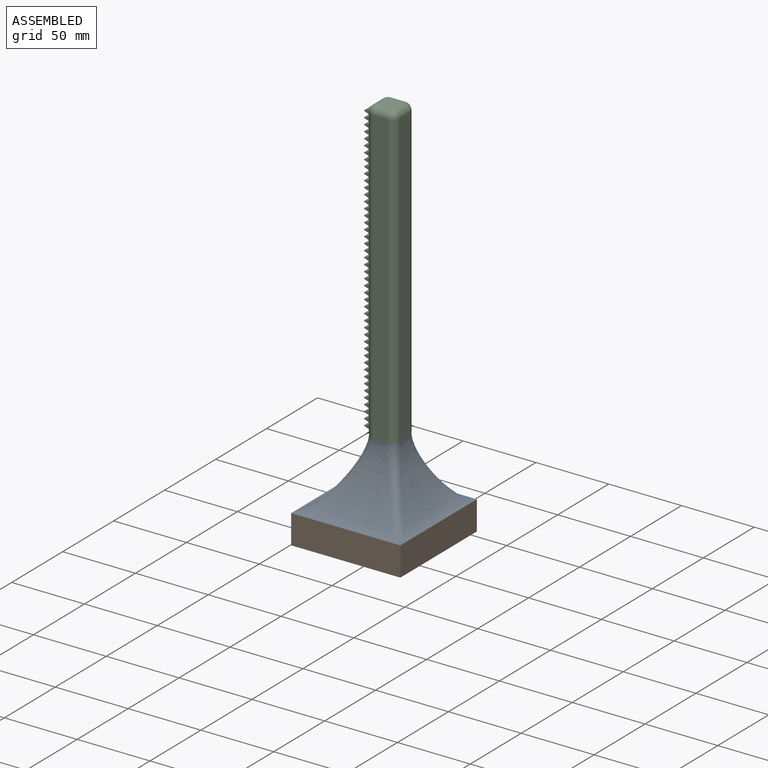
[diagram: assembled view]
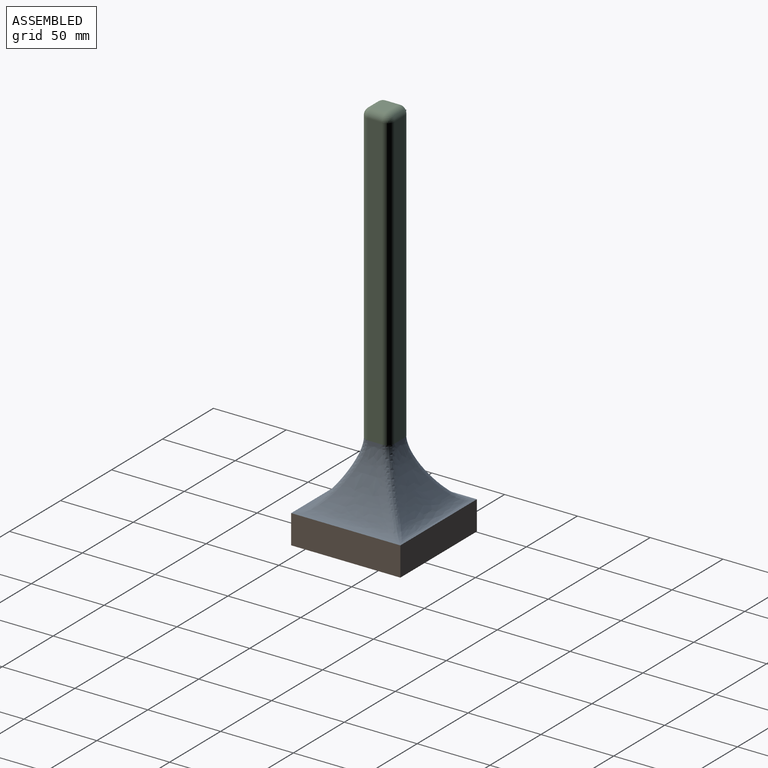
[diagram: assembled view, second angle]
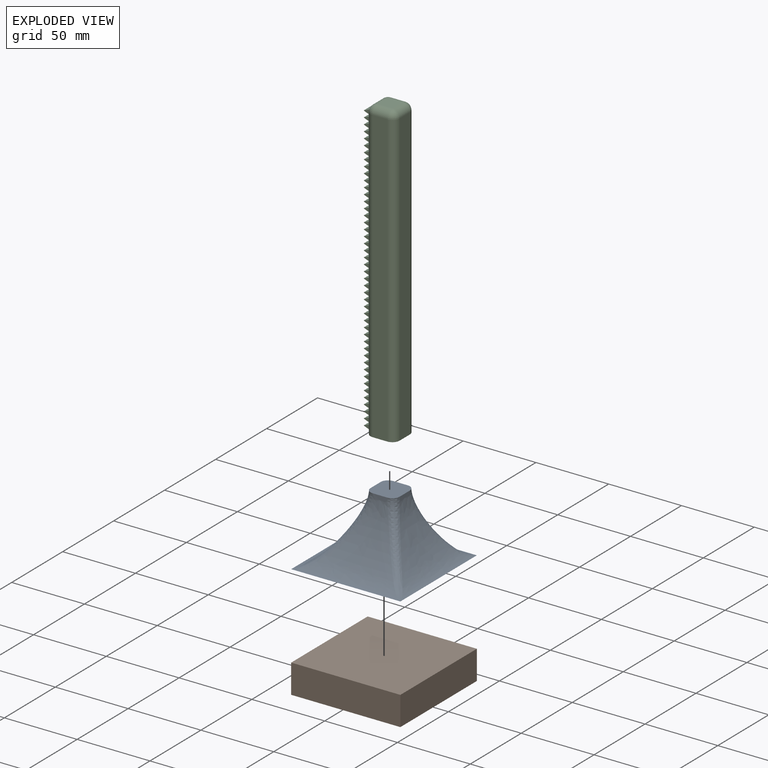
[diagram: exploded view]
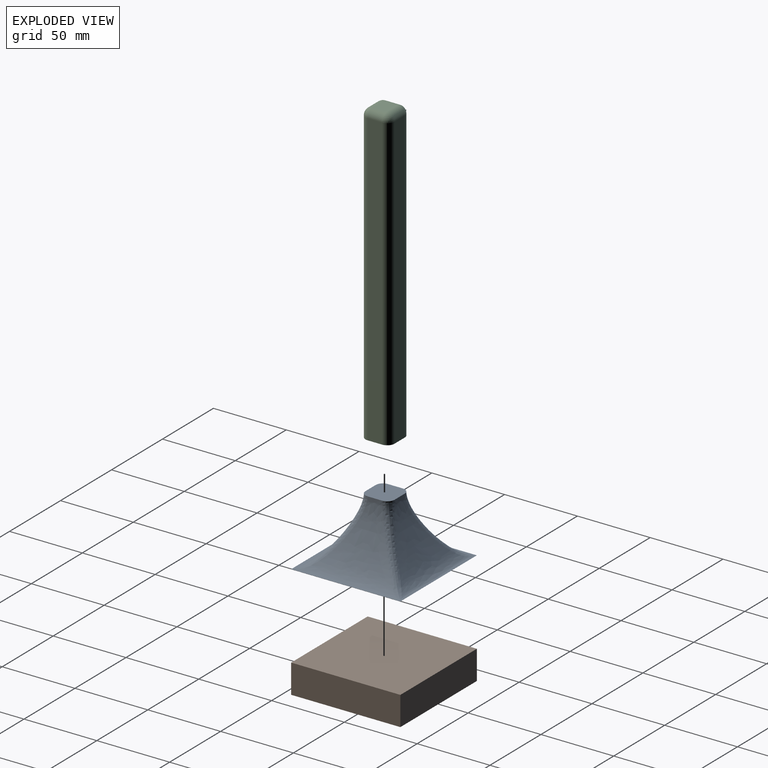
[diagram: exploded view, second angle]
ASSEMBLY  parts=3 mates=2
PART A: 10 faces, bbox 75x75x45.7 mm
  f0: plane 75x75mm, normal (0,0,-1), area 5625mm2, adj f2,f3,f4,f5
  f1: plane 20x20mm, normal (0,0,1), area 378.5mm2, adj f2,f3,f4,f5,f6,f7,f8,f9
  f2: bspline ~75x45mm, area 1706.3mm2, adj f0,f1,f8,f9
  f3: bspline ~75x45mm, area 1863.4mm2, adj f0,f1,f7,f8
  f4: bspline ~75x45mm, area 1863.3mm2, adj f0,f1,f6,f7
  f5: bspline ~75x45mm, area 1706.4mm2, adj f0,f1,f6,f9
  f6: bspline ~45.33x35mm, area 382mm2, adj f1,f4,f5
  f7: bspline ~45.66x35mm, area 383.9mm2, adj f1,f3,f4
  f8: bspline ~45.33x35mm, area 382mm2, adj f1,f2,f3
  f9: bspline ~45.44x30mm, area 376.5mm2, adj f1,f2,f5
PART B: 6 faces, bbox 75x75x20 mm
  f0: plane 75x20mm, normal (1,0,0), area 1500mm2, adj f1,f3,f4,f5
  f1: plane 75x20mm, normal (0,1,0), area 1500mm2, adj f0,f2,f4,f5
  f2: plane 75x20mm, normal (-1,0,0), area 1500mm2, adj f1,f3,f4,f5
  f3: plane 75x20mm, normal (0,-1,0), area 1500mm2, adj f0,f2,f4,f5
  f4: plane 75x75mm, normal (0,0,-1), area 5625mm2, adj f0,f1,f2,f3
  f5: plane 75x75mm, normal (0,0,1), area 5625mm2, adj f0,f1,f2,f3
PART C: 273 faces, bbox 25.3x20x205 mm
  f0: plane 200x10mm, normal (1,0,0), area 2000mm2, adj f2,f260,f262,f269
  f1: plane 200x10mm, normal (-1,0,0), area 441mm2, adj f2,f5,f6,f7,f8,f9,f10,f11
  f2: plane 20x20mm, normal (0,0,-1), area 378.5mm2, adj f0,f1,f3,f4,f260,f261,f262,f263
  f3: plane 200x10mm, normal (0,-1,0), area 2000mm2, adj f2,f262,f263,f272
  f4: plane 200x10mm, normal (0,1,0), area 2000mm2, adj f2,f260,f261,f265
  f5: plane 99.94x5.34mm, normal (0,-1,0), area 283.4mm2, adj f1,f29,f30,f31,f32,f33,f34,f35
  f6: plane 5.34x4.35mm, normal (0,-1,0), area 12.3mm2, adj f1,f82,f83,f84,f85,f86
  f7: plane 5.34x4.35mm, normal (0,-1,0), area 12.3mm2, adj f1,f87,f88,f89,f90,f91
  f8: plane 5.34x4.35mm, normal (0,-1,0), area 12.3mm2, adj f1,f92,f93,f94,f95,f96
  f9: plane 5.34x4.35mm, normal (0,-1,0), area 12.3mm2, adj f1,f97,f98,f99,f100,f101
  f10: plane 5.34x4.35mm, normal (0,-1,0), area 12.3mm2, adj f1,f102,f103,f104,f105,f106
  f11: plane 5.34x4.35mm, normal (0,-1,0), area 12.3mm2, adj f1,f107,f108,f109,f110,f111
  f12: plane 5.34x4.35mm, normal (0,-1,0), area 12.3mm2, adj f1,f112,f113,f114,f115,f116
  f13: plane 5.34x4.35mm, normal (0,-1,0), area 12.3mm2, adj f1,f117,f118,f119,f120,f121
  f14: plane 5.34x4.35mm, normal (0,-1,0), area 12.3mm2, adj f1,f122,f123,f124,f125,f126
  f15: plane 5.34x4.35mm, normal (0,-1,0), area 12.3mm2, adj f1,f127,f128,f129,f130,f131
  f16: plane 5.34x4.35mm, normal (0,-1,0), area 12.3mm2, adj f1,f132,f133,f134,f135,f136
  f17: plane 5.34x4.35mm, normal (0,-1,0), area 12.3mm2, adj f1,f137,f138,f139,f140,f141
  f18: plane 5.34x4.35mm, normal (0,-1,0), area 12.3mm2, adj f1,f142,f143,f144,f145,f146
  f19: plane 5.34x4.35mm, normal (0,-1,0), area 12.3mm2, adj f1,f147,f148,f149,f150,f151
  f20: plane 5.34x4.35mm, normal (0,-1,0), area 12.3mm2, adj f1,f152,f153,f154,f155,f156
  f21: plane 5.34x4.35mm, normal (0,-1,0), area 12.3mm2, adj f1,f157,f158,f159,f160,f161
  f22: plane 5.34x4.35mm, normal (0,-1,0), area 12.3mm2, adj f1,f162,f163,f164,f165,f166
  f23: plane 5.34x4.35mm, normal (0,-1,0), area 12.3mm2, adj f1,f167,f168,f169,f170,f171
  f24: plane 5.34x4.35mm, normal (0,-1,0), area 12.3mm2, adj f1,f172,f173,f174,f175,f176
  f25: plane 5.34x4.35mm, normal (0,-1,0), area 12.3mm2, adj f1,f177,f178,f179,f180,f181
  f26: plane 5.34x4.35mm, normal (0,-1,0), area 12.3mm2, adj f1,f182,f183,f184,f185,f186
  f27: plane 5.34x4.35mm, normal (0,-1,0), area 12.3mm2, adj f1,f187,f188,f189,f190,f191
  f28: plane 5.34x4.35mm, normal (0,-1,0), area 12.3mm2, adj f1,f192,f193,f194,f195,f196
  f29: plane 7.8x0.49mm, normal (-0.36,0,-0.93), area 4.1mm2, adj f5,f30,f235,f236
  f30: plane 7.8x5.21mm, normal (-0.36,0,0.93), area 43.5mm2, adj f5,f29,f31,f236
  f31: cylinder r=0.2mm len=7.8mm, axis (0,1,0), area 3.8mm2, adj f5,f30,f32,f236
  f32: plane 7.8x4.72mm, normal (-0.36,0,-0.93), area 39.4mm2, adj f5,f31,f33,f236
  f33: plane 7.8x0.49mm, normal (-0.36,0,-0.93), area 4.1mm2, adj f5,f32,f34,f236
  f34: plane 7.8x5.21mm, normal (-0.36,0,0.93), area 43.5mm2, adj f5,f33,f35,f236
  f35: cylinder r=0.2mm len=7.8mm, axis (0,1,0), area 3.8mm2, adj f5,f34,f36,f236
  f36: plane 7.8x4.72mm, normal (-0.36,0,-0.93), area 39.4mm2, adj f5,f35,f37,f236
  f37: plane 7.8x0.49mm, normal (-0.36,0,-0.93), area 4.1mm2, adj f5,f36,f38,f236
  f38: plane 7.8x5.21mm, normal (-0.36,0,0.93), area 43.5mm2, adj f5,f37,f39,f236
  f39: cylinder r=0.2mm len=7.8mm, axis (0,1,0), area 3.8mm2, adj f5,f38,f40,f236
  f40: plane 7.8x4.72mm, normal (-0.36,0,-0.93), area 39.4mm2, adj f5,f39,f41,f236
  f41: plane 7.8x0.49mm, normal (-0.36,0,-0.93), area 4.1mm2, adj f5,f40,f42,f236
  f42: plane 7.8x5.21mm, normal (-0.36,0,0.93), area 43.5mm2, adj f5,f41,f43,f236
  f43: cylinder r=0.2mm len=7.8mm, axis (0,1,0), area 3.8mm2, adj f5,f42,f44,f236
  f44: plane 7.8x4.72mm, normal (-0.36,0,-0.93), area 39.4mm2, adj f5,f43,f45,f236
  f45: plane 7.8x0.49mm, normal (-0.36,0,-0.93), area 4.1mm2, adj f5,f44,f46,f236
  f46: plane 7.8x5.21mm, normal (-0.36,0,0.93), area 43.5mm2, adj f5,f45,f47,f236
  f47: cylinder r=0.2mm len=7.8mm, axis (0,1,0), area 3.8mm2, adj f5,f46,f48,f236
  f48: plane 7.8x4.72mm, normal (-0.36,0,-0.93), area 39.4mm2, adj f5,f47,f49,f236
  f49: plane 7.8x0.49mm, normal (-0.36,0,-0.93), area 4.1mm2, adj f5,f48,f50,f236
  f50: plane 7.8x5.21mm, normal (-0.36,0,0.93), area 43.5mm2, adj f5,f49,f51,f236
  f51: cylinder r=0.2mm len=7.8mm, axis (0,1,0), area 3.8mm2, adj f5,f50,f52,f236
  f52: plane 7.8x4.72mm, normal (-0.36,0,-0.93), area 39.4mm2, adj f5,f51,f53,f236
  f53: plane 7.8x0.49mm, normal (-0.36,0,-0.93), area 4.1mm2, adj f5,f52,f54,f236
  f54: plane 7.8x5.21mm, normal (-0.36,0,0.93), area 43.5mm2, adj f5,f53,f55,f236
  f55: cylinder r=0.2mm len=7.8mm, axis (0,1,0), area 3.8mm2, adj f5,f54,f56,f236
  f56: plane 7.8x4.72mm, normal (-0.36,0,-0.93), area 39.4mm2, adj f5,f55,f57,f236
  f57: plane 7.8x0.49mm, normal (-0.36,0,-0.93), area 4.1mm2, adj f5,f56,f58,f236
  f58: plane 7.8x5.21mm, normal (-0.36,0,0.93), area 43.5mm2, adj f5,f57,f59,f236
  f59: cylinder r=0.2mm len=7.8mm, axis (0,1,0), area 3.8mm2, adj f5,f58,f60,f236
  f60: plane 7.8x4.72mm, normal (-0.36,0,-0.93), area 39.4mm2, adj f5,f59,f61,f236
  f61: plane 7.8x0.49mm, normal (-0.36,0,-0.93), area 4.1mm2, adj f5,f60,f62,f236
  f62: plane 7.8x5.21mm, normal (-0.36,0,0.93), area 43.5mm2, adj f5,f61,f63,f236
  f63: cylinder r=0.2mm len=7.8mm, axis (0,1,0), area 3.8mm2, adj f5,f62,f64,f236
  f64: plane 7.8x4.72mm, normal (-0.36,0,-0.93), area 39.4mm2, adj f5,f63,f65,f236
  f65: plane 7.8x0.49mm, normal (-0.36,0,-0.93), area 4.1mm2, adj f5,f64,f66,f236
  f66: plane 7.8x5.21mm, normal (-0.36,0,0.93), area 43.5mm2, adj f5,f65,f67,f236
  f67: cylinder r=0.2mm len=7.8mm, axis (0,1,0), area 3.8mm2, adj f5,f66,f68,f236
  f68: plane 7.8x4.72mm, normal (-0.36,0,-0.93), area 39.4mm2, adj f5,f67,f69,f236
  f69: plane 7.8x0.49mm, normal (-0.36,0,-0.93), area 4.1mm2, adj f5,f68,f70,f236
  f70: plane 7.8x5.21mm, normal (-0.36,0,0.93), area 43.5mm2, adj f5,f69,f71,f236
  f71: cylinder r=0.2mm len=7.8mm, axis (0,1,0), area 3.8mm2, adj f5,f70,f72,f236
  f72: plane 7.8x4.72mm, normal (-0.36,0,-0.93), area 39.4mm2, adj f5,f71,f73,f236
  f73: plane 7.8x0.49mm, normal (-0.36,0,-0.93), area 4.1mm2, adj f5,f72,f74,f236
  f74: plane 7.8x5.21mm, normal (-0.36,0,0.93), area 43.5mm2, adj f5,f73,f75,f236
  f75: cylinder r=0.2mm len=7.8mm, axis (0,1,0), area 3.8mm2, adj f5,f74,f76,f236
  f76: plane 7.8x4.72mm, normal (-0.36,0,-0.93), area 39.4mm2, adj f5,f75,f77,f236
  f77: plane 7.8x0.49mm, normal (-0.36,0,-0.93), area 4.1mm2, adj f5,f76,f78,f236
  f78: plane 7.8x5.21mm, normal (-0.36,0,0.93), area 43.5mm2, adj f5,f77,f79,f236
  f79: cylinder r=0.2mm len=7.8mm, axis (0,1,0), area 3.8mm2, adj f5,f78,f80,f236
  f80: plane 7.8x4.72mm, normal (-0.36,0,-0.93), area 39.4mm2, adj f5,f79,f81,f236
  f81: plane 7.8x0.49mm, normal (-0.36,0,-0.93), area 4.1mm2, adj f5,f80,f82,f236
  f82: plane 7.8x0.49mm, normal (-0.35,0,0.94), area 4.1mm2, adj f6,f81,f83,f237
  f83: plane 7.8x4.72mm, normal (-0.36,0,0.93), area 39.4mm2, adj f6,f82,f84,f237
  f84: cylinder r=0.2mm len=7.8mm, axis (0,1,0), area 3.8mm2, adj f6,f83,f85,f237
  f85: plane 7.8x4.2mm, normal (-0.36,0,-0.93), area 35mm2, adj f6,f84,f86,f237
  f86: plane 7.8x1.01mm, normal (-0.36,0,-0.93), area 8.5mm2, adj f6,f85,f87,f237
  f87: plane 7.8x0.49mm, normal (-0.35,0,0.94), area 4.1mm2, adj f7,f86,f88,f238
  f88: plane 7.8x4.72mm, normal (-0.36,0,0.93), area 39.4mm2, adj f7,f87,f89,f238
  f89: cylinder r=0.2mm len=7.8mm, axis (0,1,0), area 3.8mm2, adj f7,f88,f90,f238
  f90: plane 7.8x4.2mm, normal (-0.36,0,-0.93), area 35mm2, adj f7,f89,f91,f238
  f91: plane 7.8x1.01mm, normal (-0.36,0,-0.93), area 8.5mm2, adj f7,f90,f92,f238
  f92: plane 7.8x0.49mm, normal (-0.35,0,0.94), area 4.1mm2, adj f8,f91,f93,f239
  f93: plane 7.8x4.72mm, normal (-0.36,0,0.93), area 39.4mm2, adj f8,f92,f94,f239
  f94: cylinder r=0.2mm len=7.8mm, axis (0,1,0), area 3.8mm2, adj f8,f93,f95,f239
  f95: plane 7.8x4.2mm, normal (-0.36,0,-0.93), area 35mm2, adj f8,f94,f96,f239
  f96: plane 7.8x1.01mm, normal (-0.36,0,-0.93), area 8.5mm2, adj f8,f95,f97,f239
  f97: plane 7.8x0.49mm, normal (-0.35,0,0.94), area 4.1mm2, adj f9,f96,f98,f240
  f98: plane 7.8x4.72mm, normal (-0.36,0,0.93), area 39.4mm2, adj f9,f97,f99,f240
  f99: cylinder r=0.2mm len=7.8mm, axis (0,1,0), area 3.8mm2, adj f9,f98,f100,f240
  f100: plane 7.8x4.2mm, normal (-0.36,0,-0.93), area 35mm2, adj f9,f99,f101,f240
  f101: plane 7.8x1.01mm, normal (-0.36,0,-0.93), area 8.5mm2, adj f9,f100,f102,f240
  f102: plane 7.8x0.49mm, normal (-0.35,0,0.94), area 4.1mm2, adj f10,f101,f103,f241
  f103: plane 7.8x4.72mm, normal (-0.36,0,0.93), area 39.4mm2, adj f10,f102,f104,f241
  f104: cylinder r=0.2mm len=7.8mm, axis (0,1,0), area 3.8mm2, adj f10,f103,f105,f241
  f105: plane 7.8x4.2mm, normal (-0.36,0,-0.93), area 35mm2, adj f10,f104,f106,f241
  f106: plane 7.8x1.01mm, normal (-0.36,0,-0.93), area 8.5mm2, adj f10,f105,f107,f241
  f107: plane 7.8x0.49mm, normal (-0.35,0,0.94), area 4.1mm2, adj f11,f106,f108,f242
  f108: plane 7.8x4.72mm, normal (-0.36,0,0.93), area 39.4mm2, adj f11,f107,f109,f242
  f109: cylinder r=0.2mm len=7.8mm, axis (0,1,0), area 3.8mm2, adj f11,f108,f110,f242
  f110: plane 7.8x4.2mm, normal (-0.36,0,-0.93), area 35mm2, adj f11,f109,f111,f242
  f111: plane 7.8x1.01mm, normal (-0.36,0,-0.93), area 8.5mm2, adj f11,f110,f112,f242
  f112: plane 7.8x0.49mm, normal (-0.35,0,0.94), area 4.1mm2, adj f12,f111,f113,f243
  f113: plane 7.8x4.72mm, normal (-0.36,0,0.93), area 39.4mm2, adj f12,f112,f114,f243
  f114: cylinder r=0.2mm len=7.8mm, axis (0,1,0), area 3.8mm2, adj f12,f113,f115,f243
  f115: plane 7.8x4.2mm, normal (-0.36,0,-0.93), area 35mm2, adj f12,f114,f116,f243
  f116: plane 7.8x1.01mm, normal (-0.36,0,-0.93), area 8.5mm2, adj f12,f115,f117,f243
  f117: plane 7.8x0.49mm, normal (-0.35,0,0.94), area 4.1mm2, adj f13,f116,f118,f244
  f118: plane 7.8x4.72mm, normal (-0.36,0,0.93), area 39.4mm2, adj f13,f117,f119,f244
  f119: cylinder r=0.2mm len=7.8mm, axis (0,1,0), area 3.8mm2, adj f13,f118,f120,f244
  f120: plane 7.8x4.2mm, normal (-0.36,0,-0.93), area 35mm2, adj f13,f119,f121,f244
  f121: plane 7.8x1.01mm, normal (-0.36,0,-0.93), area 8.5mm2, adj f13,f120,f122,f244
  f122: plane 7.8x0.49mm, normal (-0.35,0,0.94), area 4.1mm2, adj f14,f121,f123,f245
  f123: plane 7.8x4.72mm, normal (-0.36,0,0.93), area 39.4mm2, adj f14,f122,f124,f245
  f124: cylinder r=0.2mm len=7.8mm, axis (0,1,0), area 3.8mm2, adj f14,f123,f125,f245
  f125: plane 7.8x4.2mm, normal (-0.36,0,-0.93), area 35mm2, adj f14,f124,f126,f245
  f126: plane 7.8x1.01mm, normal (-0.36,0,-0.93), area 8.5mm2, adj f14,f125,f127,f245
  f127: plane 7.8x0.49mm, normal (-0.35,0,0.94), area 4.1mm2, adj f15,f126,f128,f246
  f128: plane 7.8x4.72mm, normal (-0.36,0,0.93), area 39.4mm2, adj f15,f127,f129,f246
  f129: cylinder r=0.2mm len=7.8mm, axis (0,1,0), area 3.8mm2, adj f15,f128,f130,f246
  f130: plane 7.8x4.2mm, normal (-0.36,0,-0.93), area 35mm2, adj f15,f129,f131,f246
  f131: plane 7.8x1.01mm, normal (-0.36,0,-0.93), area 8.5mm2, adj f15,f130,f132,f246
  f132: plane 7.8x0.49mm, normal (-0.35,0,0.94), area 4.1mm2, adj f16,f131,f133,f247
  f133: plane 7.8x4.72mm, normal (-0.36,0,0.93), area 39.4mm2, adj f16,f132,f134,f247
  f134: cylinder r=0.2mm len=7.8mm, axis (0,1,0), area 3.8mm2, adj f16,f133,f135,f247
  f135: plane 7.8x4.2mm, normal (-0.36,0,-0.93), area 35mm2, adj f16,f134,f136,f247
  f136: plane 7.8x1.01mm, normal (-0.36,0,-0.93), area 8.5mm2, adj f16,f135,f137,f247
  f137: plane 7.8x0.49mm, normal (-0.35,0,0.94), area 4.1mm2, adj f17,f136,f138,f248
  f138: plane 7.8x4.72mm, normal (-0.36,0,0.93), area 39.4mm2, adj f17,f137,f139,f248
  f139: cylinder r=0.2mm len=7.8mm, axis (0,1,0), area 3.8mm2, adj f17,f138,f140,f248
  f140: plane 7.8x4.2mm, normal (-0.36,0,-0.93), area 35mm2, adj f17,f139,f141,f248
  f141: plane 7.8x1.01mm, normal (-0.36,0,-0.93), area 8.5mm2, adj f17,f140,f142,f248
  f142: plane 7.8x0.49mm, normal (-0.35,0,0.94), area 4.1mm2, adj f18,f141,f143,f249
  f143: plane 7.8x4.72mm, normal (-0.36,0,0.93), area 39.4mm2, adj f18,f142,f144,f249
  f144: cylinder r=0.2mm len=7.8mm, axis (0,1,0), area 3.8mm2, adj f18,f143,f145,f249
  f145: plane 7.8x4.2mm, normal (-0.36,0,-0.93), area 35mm2, adj f18,f144,f146,f249
  f146: plane 7.8x1.01mm, normal (-0.36,0,-0.93), area 8.5mm2, adj f18,f145,f147,f249
  f147: plane 7.8x0.49mm, normal (-0.35,0,0.94), area 4.1mm2, adj f19,f146,f148,f250
  f148: plane 7.8x4.72mm, normal (-0.36,0,0.93), area 39.4mm2, adj f19,f147,f149,f250
  f149: cylinder r=0.2mm len=7.8mm, axis (0,1,0), area 3.8mm2, adj f19,f148,f150,f250
  f150: plane 7.8x4.2mm, normal (-0.36,0,-0.93), area 35mm2, adj f19,f149,f151,f250
  f151: plane 7.8x1.01mm, normal (-0.36,0,-0.93), area 8.5mm2, adj f19,f150,f152,f250
  f152: plane 7.8x0.49mm, normal (-0.35,0,0.94), area 4.1mm2, adj f20,f151,f153,f251
  f153: plane 7.8x4.72mm, normal (-0.36,0,0.93), area 39.4mm2, adj f20,f152,f154,f251
  f154: cylinder r=0.2mm len=7.8mm, axis (0,1,0), area 3.8mm2, adj f20,f153,f155,f251
  f155: plane 7.8x4.2mm, normal (-0.36,0,-0.93), area 35mm2, adj f20,f154,f156,f251
  f156: plane 7.8x1.01mm, normal (-0.36,0,-0.93), area 8.5mm2, adj f20,f155,f157,f251
  f157: plane 7.8x0.49mm, normal (-0.35,0,0.94), area 4.1mm2, adj f21,f156,f158,f252
  f158: plane 7.8x4.72mm, normal (-0.36,0,0.93), area 39.4mm2, adj f21,f157,f159,f252
  f159: cylinder r=0.2mm len=7.8mm, axis (0,1,0), area 3.8mm2, adj f21,f158,f160,f252
  f160: plane 7.8x4.2mm, normal (-0.36,0,-0.93), area 35mm2, adj f21,f159,f161,f252
  f161: plane 7.8x1.01mm, normal (-0.36,0,-0.93), area 8.5mm2, adj f21,f160,f162,f252
  f162: plane 7.8x0.49mm, normal (-0.35,0,0.94), area 4.1mm2, adj f22,f161,f163,f253
  f163: plane 7.8x4.72mm, normal (-0.36,0,0.93), area 39.4mm2, adj f22,f162,f164,f253
  f164: cylinder r=0.2mm len=7.8mm, axis (0,1,0), area 3.8mm2, adj f22,f163,f165,f253
  f165: plane 7.8x4.2mm, normal (-0.36,0,-0.93), area 35mm2, adj f22,f164,f166,f253
  f166: plane 7.8x1.01mm, normal (-0.36,0,-0.93), area 8.5mm2, adj f22,f165,f167,f253
  f167: plane 7.8x0.49mm, normal (-0.35,0,0.94), area 4.1mm2, adj f23,f166,f168,f254
  f168: plane 7.8x4.72mm, normal (-0.36,0,0.93), area 39.4mm2, adj f23,f167,f169,f254
  f169: cylinder r=0.2mm len=7.8mm, axis (0,1,0), area 3.8mm2, adj f23,f168,f170,f254
  f170: plane 7.8x4.2mm, normal (-0.36,0,-0.93), area 35mm2, adj f23,f169,f171,f254
  f171: plane 7.8x1.01mm, normal (-0.36,0,-0.93), area 8.5mm2, adj f23,f170,f172,f254
  f172: plane 7.8x0.49mm, normal (-0.35,0,0.94), area 4.1mm2, adj f24,f171,f173,f255
  f173: plane 7.8x4.72mm, normal (-0.36,0,0.93), area 39.4mm2, adj f24,f172,f174,f255
  f174: cylinder r=0.2mm len=7.8mm, axis (0,1,0), area 3.8mm2, adj f24,f173,f175,f255
  f175: plane 7.8x4.2mm, normal (-0.36,0,-0.93), area 35mm2, adj f24,f174,f176,f255
  f176: plane 7.8x1.01mm, normal (-0.36,0,-0.93), area 8.5mm2, adj f24,f175,f177,f255
  f177: plane 7.8x0.49mm, normal (-0.35,0,0.94), area 4.1mm2, adj f25,f176,f178,f256
  f178: plane 7.8x4.72mm, normal (-0.36,0,0.93), area 39.4mm2, adj f25,f177,f179,f256
  f179: cylinder r=0.2mm len=7.8mm, axis (0,1,0), area 3.8mm2, adj f25,f178,f180,f256
  f180: plane 7.8x4.2mm, normal (-0.36,0,-0.93), area 35mm2, adj f25,f179,f181,f256
  f181: plane 7.8x1.01mm, normal (-0.36,0,-0.93), area 8.5mm2, adj f25,f180,f182,f256
  f182: plane 7.8x0.49mm, normal (-0.35,0,0.94), area 4.1mm2, adj f26,f181,f183,f257
  f183: plane 7.8x4.72mm, normal (-0.36,0,0.93), area 39.4mm2, adj f26,f182,f184,f257
  f184: cylinder r=0.2mm len=7.8mm, axis (0,1,0), area 3.8mm2, adj f26,f183,f185,f257
  f185: plane 7.8x4.2mm, normal (-0.36,0,-0.93), area 35mm2, adj f26,f184,f186,f257
  f186: plane 7.8x1.01mm, normal (-0.36,0,-0.93), area 8.5mm2, adj f26,f185,f187,f257
  f187: plane 7.8x0.49mm, normal (-0.35,0,0.94), area 4.1mm2, adj f27,f186,f188,f258
  f188: plane 7.8x4.72mm, normal (-0.36,0,0.93), area 39.4mm2, adj f27,f187,f189,f258
  f189: cylinder r=0.2mm len=7.8mm, axis (0,1,0), area 3.8mm2, adj f27,f188,f190,f258
  f190: plane 7.8x4.2mm, normal (-0.36,0,-0.93), area 35mm2, adj f27,f189,f191,f258
  f191: plane 7.8x1.01mm, normal (-0.36,0,-0.93), area 8.5mm2, adj f27,f190,f192,f258
  f192: plane 7.8x0.49mm, normal (-0.35,0,0.94), area 4.1mm2, adj f28,f191,f193,f259
  f193: plane 7.8x4.72mm, normal (-0.36,0,0.93), area 39.4mm2, adj f28,f192,f194,f259
  f194: cylinder r=0.2mm len=7.8mm, axis (0,1,0), area 3.8mm2, adj f28,f193,f195,f259
  f195: plane 7.8x4.2mm, normal (-0.36,0,-0.93), area 35mm2, adj f28,f194,f196,f259
  f196: plane 7.8x1.01mm, normal (-0.36,0,-0.93), area 8.5mm2, adj f1,f28,f195,f259
  f197: plane 7.8x5.21mm, normal (-0.36,0,0.93), area 43.5mm2, adj f1,f5,f198,f236
  f198: cylinder r=0.2mm len=7.8mm, axis (0,1,0), area 3.8mm2, adj f5,f197,f199,f236
  f199: plane 7.8x4.72mm, normal (-0.36,0,-0.93), area 39.4mm2, adj f5,f198,f200,f236
  f200: plane 7.8x0.49mm, normal (-0.36,0,-0.93), area 4.1mm2, adj f5,f199,f201,f236
  f201: plane 7.8x5.21mm, normal (-0.36,0,0.93), area 43.5mm2, adj f5,f200,f202,f236
  f202: cylinder r=0.2mm len=7.8mm, axis (0,1,0), area 3.8mm2, adj f5,f201,f203,f236
  f203: plane 7.8x4.72mm, normal (-0.36,0,-0.93), area 39.4mm2, adj f5,f202,f204,f236
  f204: plane 7.8x0.49mm, normal (-0.36,0,-0.93), area 4.1mm2, adj f5,f203,f205,f236
  f205: plane 7.8x5.21mm, normal (-0.36,0,0.93), area 43.5mm2, adj f5,f204,f206,f236
  f206: cylinder r=0.2mm len=7.8mm, axis (0,1,0), area 3.8mm2, adj f5,f205,f207,f236
  f207: plane 7.8x4.72mm, normal (-0.36,0,-0.93), area 39.4mm2, adj f5,f206,f208,f236
  f208: plane 7.8x0.49mm, normal (-0.36,0,-0.93), area 4.1mm2, adj f5,f207,f209,f236
  f209: plane 7.8x5.21mm, normal (-0.36,0,0.93), area 43.5mm2, adj f5,f208,f210,f236
  f210: cylinder r=0.2mm len=7.8mm, axis (0,1,0), area 3.8mm2, adj f5,f209,f211,f236
  f211: plane 7.8x4.72mm, normal (-0.36,0,-0.93), area 39.4mm2, adj f5,f210,f212,f236
  f212: plane 7.8x0.49mm, normal (-0.36,0,-0.93), area 4.1mm2, adj f5,f211,f213,f236
  f213: plane 7.8x5.21mm, normal (-0.36,0,0.93), area 43.5mm2, adj f5,f212,f214,f236
  f214: cylinder r=0.2mm len=7.8mm, axis (0,1,0), area 3.8mm2, adj f5,f213,f215,f236
  f215: plane 7.8x4.72mm, normal (-0.36,0,-0.93), area 39.4mm2, adj f5,f214,f216,f236
  f216: plane 7.8x0.49mm, normal (-0.36,0,-0.93), area 4.1mm2, adj f5,f215,f217,f236
  f217: plane 7.8x5.21mm, normal (-0.36,0,0.93), area 43.5mm2, adj f5,f216,f218,f236
  f218: cylinder r=0.2mm len=7.8mm, axis (0,1,0), area 3.8mm2, adj f5,f217,f219,f236
  f219: plane 7.8x4.72mm, normal (-0.36,0,-0.93), area 39.4mm2, adj f5,f218,f220,f236
  f220: plane 7.8x0.49mm, normal (-0.36,0,-0.93), area 4.1mm2, adj f5,f219,f221,f236
  f221: plane 7.8x5.21mm, normal (-0.36,0,0.93), area 43.5mm2, adj f5,f220,f222,f236
  f222: cylinder r=0.2mm len=7.8mm, axis (0,1,0), area 3.8mm2, adj f5,f221,f223,f236
  f223: plane 7.8x4.72mm, normal (-0.36,0,-0.93), area 39.4mm2, adj f5,f222,f224,f236
  f224: plane 7.8x0.49mm, normal (-0.36,0,-0.93), area 4.1mm2, adj f5,f223,f225,f236
  f225: plane 7.8x5.21mm, normal (-0.36,0,0.93), area 43.5mm2, adj f5,f224,f226,f236
  f226: cylinder r=0.2mm len=7.8mm, axis (0,1,0), area 3.8mm2, adj f5,f225,f227,f236
  f227: plane 7.8x4.72mm, normal (-0.36,0,-0.93), area 39.4mm2, adj f5,f226,f228,f236
  f228: plane 7.8x0.49mm, normal (-0.36,0,-0.93), area 4.1mm2, adj f5,f227,f229,f236
  f229: plane 7.8x5.21mm, normal (-0.36,0,0.93), area 43.5mm2, adj f5,f228,f230,f236
  f230: cylinder r=0.2mm len=7.8mm, axis (0,1,0), area 3.8mm2, adj f5,f229,f231,f236
  f231: plane 7.8x4.72mm, normal (-0.36,0,-0.93), area 39.4mm2, adj f5,f230,f232,f236
  f232: plane 7.8x0.49mm, normal (-0.36,0,-0.93), area 4.1mm2, adj f5,f231,f233,f236
  f233: plane 7.8x5.21mm, normal (-0.36,0,0.93), area 43.5mm2, adj f5,f232,f234,f236
  f234: cylinder r=0.2mm len=7.8mm, axis (0,1,0), area 3.8mm2, adj f5,f233,f235,f236
  f235: plane 7.8x4.72mm, normal (-0.36,0,-0.93), area 39.4mm2, adj f5,f29,f234,f236
  f236: plane 99.94x5.34mm, normal (0,1,0), area 283.4mm2, adj f1,f29,f30,f31,f32,f33,f34,f35
  f237: plane 5.34x4.35mm, normal (0,1,0), area 12.3mm2, adj f1,f82,f83,f84,f85,f86
  f238: plane 5.34x4.35mm, normal (0,1,0), area 12.3mm2, adj f1,f87,f88,f89,f90,f91
  f239: plane 5.34x4.35mm, normal (0,1,0), area 12.3mm2, adj f1,f92,f93,f94,f95,f96
  f240: plane 5.34x4.35mm, normal (0,1,0), area 12.3mm2, adj f1,f97,f98,f99,f100,f101
  f241: plane 5.34x4.35mm, normal (0,1,0), area 12.3mm2, adj f1,f102,f103,f104,f105,f106
  f242: plane 5.34x4.35mm, normal (0,1,0), area 12.3mm2, adj f1,f107,f108,f109,f110,f111
  f243: plane 5.34x4.35mm, normal (0,1,0), area 12.3mm2, adj f1,f112,f113,f114,f115,f116
  f244: plane 5.34x4.35mm, normal (0,1,0), area 12.3mm2, adj f1,f117,f118,f119,f120,f121
  f245: plane 5.34x4.35mm, normal (0,1,0), area 12.3mm2, adj f1,f122,f123,f124,f125,f126
  f246: plane 5.34x4.35mm, normal (0,1,0), area 12.3mm2, adj f1,f127,f128,f129,f130,f131
  f247: plane 5.34x4.35mm, normal (0,1,0), area 12.3mm2, adj f1,f132,f133,f134,f135,f136
  f248: plane 5.34x4.35mm, normal (0,1,0), area 12.3mm2, adj f1,f137,f138,f139,f140,f141
  f249: plane 5.34x4.35mm, normal (0,1,0), area 12.3mm2, adj f1,f142,f143,f144,f145,f146
  f250: plane 5.34x4.35mm, normal (0,1,0), area 12.3mm2, adj f1,f147,f148,f149,f150,f151
  f251: plane 5.34x4.35mm, normal (0,1,0), area 12.3mm2, adj f1,f152,f153,f154,f155,f156
  f252: plane 5.34x4.35mm, normal (0,1,0), area 12.3mm2, adj f1,f157,f158,f159,f160,f161
  f253: plane 5.34x4.35mm, normal (0,1,0), area 12.3mm2, adj f1,f162,f163,f164,f165,f166
  f254: plane 5.34x4.35mm, normal (0,1,0), area 12.3mm2, adj f1,f167,f168,f169,f170,f171
  f255: plane 5.34x4.35mm, normal (0,1,0), area 12.3mm2, adj f1,f172,f173,f174,f175,f176
  f256: plane 5.34x4.35mm, normal (0,1,0), area 12.3mm2, adj f1,f177,f178,f179,f180,f181
  f257: plane 5.34x4.35mm, normal (0,1,0), area 12.3mm2, adj f1,f182,f183,f184,f185,f186
  f258: plane 5.34x4.35mm, normal (0,1,0), area 12.3mm2, adj f1,f187,f188,f189,f190,f191
  f259: plane 5.34x4.35mm, normal (0,1,0), area 12.3mm2, adj f1,f192,f193,f194,f195,f196
  f260: cylinder r=5mm len=200mm, axis (0,0,1), area 1570.8mm2, adj f0,f2,f4,f267
  f261: cylinder r=5mm len=200mm, axis (0,0,-1), area 1570.8mm2, adj f1,f2,f4,f266
  f262: cylinder r=5mm len=200mm, axis (0,0,-1), area 1570.8mm2, adj f0,f2,f3,f271
  f263: cylinder r=5mm len=200mm, axis (0,0,1), area 1570.8mm2, adj f1,f2,f3,f270
  f264: plane 10x10mm, normal (0,0,1), area 100mm2, adj f265,f268,f269,f272
  f265: cylinder r=5mm len=10mm, axis (-1,0,0), area 78.5mm2, adj f4,f264,f266,f267
  f266: sphere r=5mm, area 39.3mm2, adj f261,f265,f268
  f267: sphere r=5mm, area 39.3mm2, adj f260,f265,f269
  f268: cylinder r=5mm len=10mm, axis (0,-1,0), area 78.5mm2, adj f1,f264,f266,f270
  f269: cylinder r=5mm len=10mm, axis (0,1,0), area 78.5mm2, adj f0,f264,f267,f271
  f270: sphere r=5mm, area 39.3mm2, adj f263,f268,f272
  f271: sphere r=5mm, area 39.3mm2, adj f262,f269,f272
  f272: cylinder r=5mm len=10mm, axis (1,0,0), area 78.5mm2, adj f3,f264,f270,f271
PLACE A at identity
PLACE B at identity
PLACE C at identity
MATE fastened C.f2 <-> A.f1  axis (0,0,-1) through (10,0,-100)mm
MATE fastened A.f0 <-> B.f5  axis (0,0,-1) through (7.5,-2.5,-145)mm
